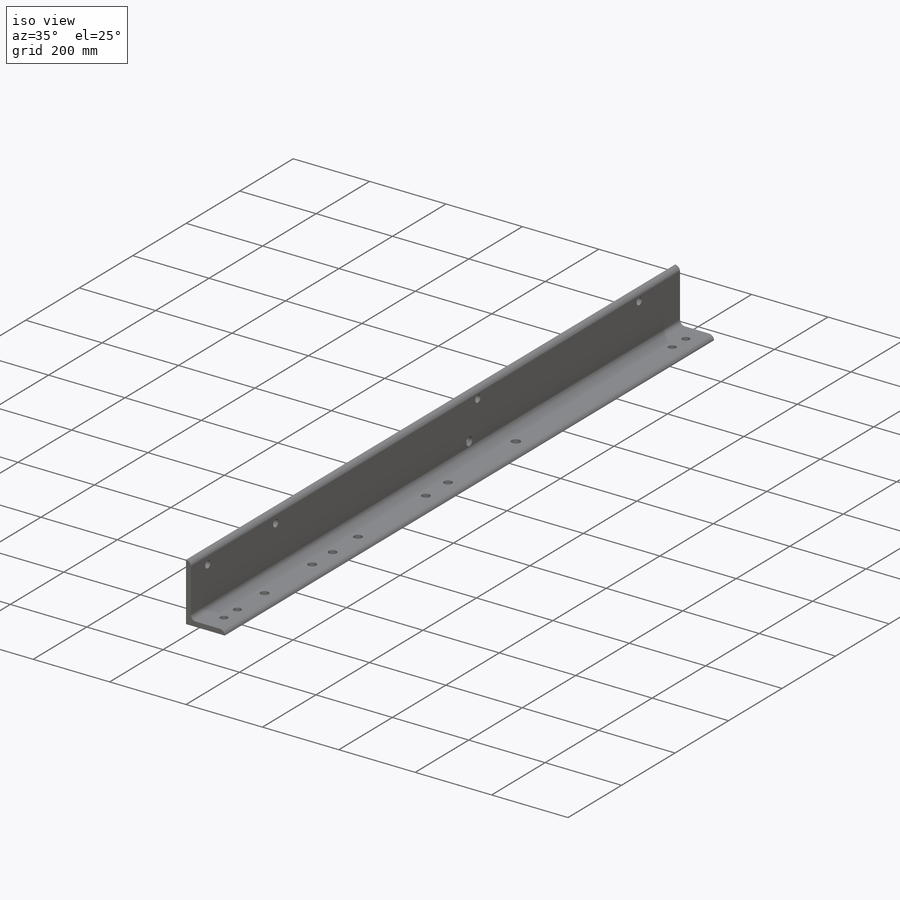
[diagram: iso view]
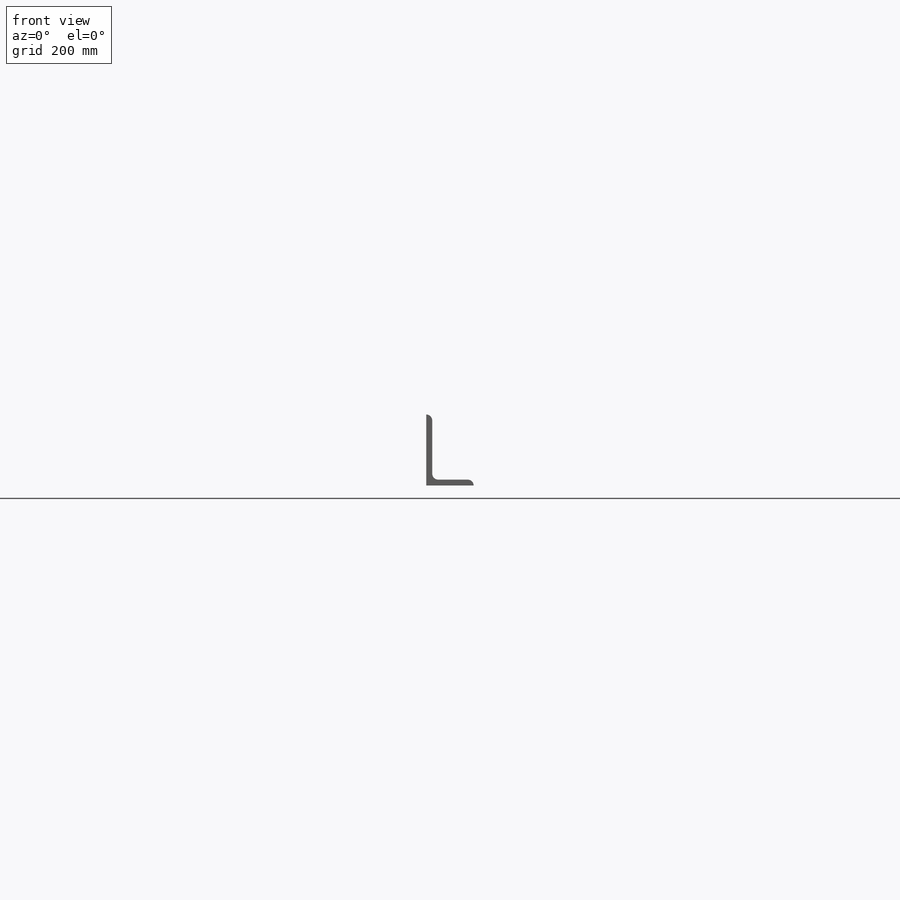
[diagram: front view]
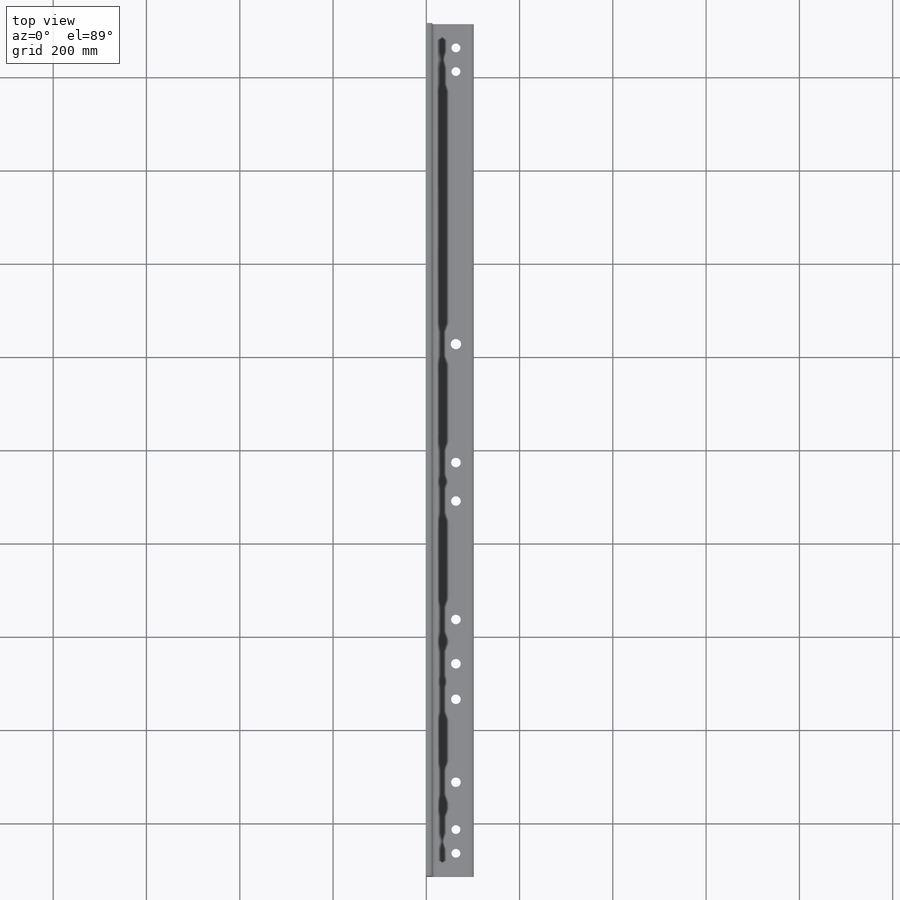
[diagram: top view]
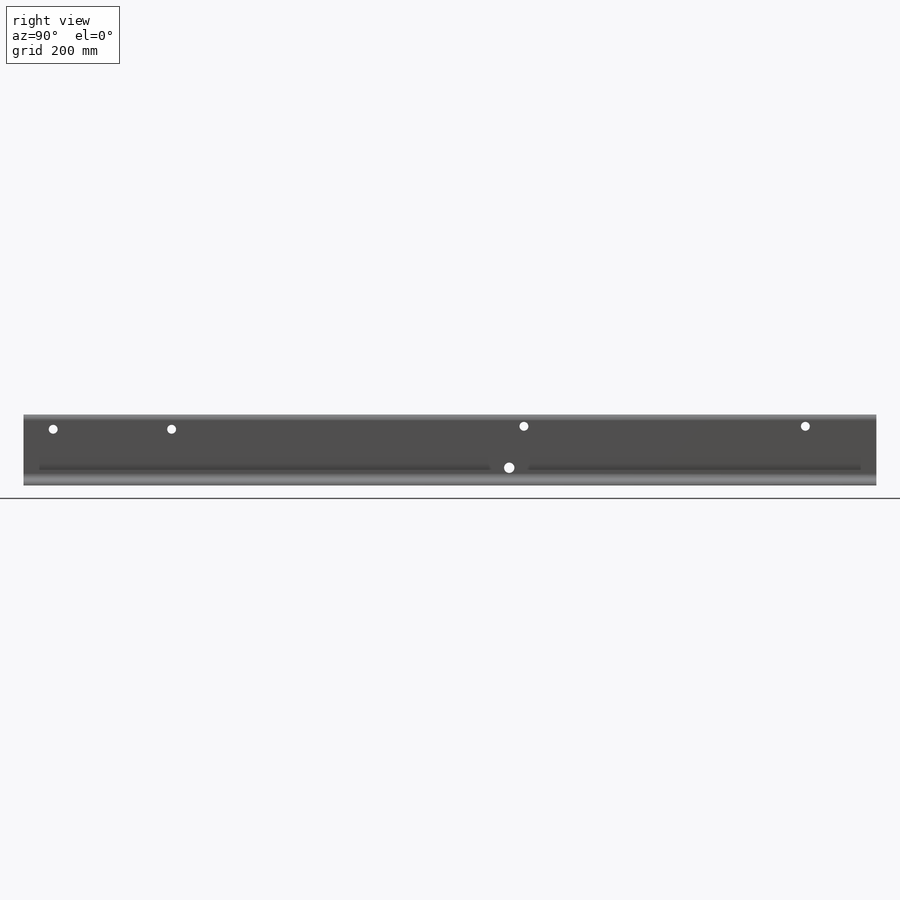
[diagram: right view]
SOLIDWORKS PART (.sldprt)
format: sldprt  version: not decoded by parser v0  size: 281,088 bytes
history: native  units: mm
features: sketch x4, cut_extrude x3, material x1, extrude x1 (+11 scaffold rows collapsed)
feature tree (20):
  scaffold x11  (default folders/planes/origin — collapsed)
  material  "Material <not specified>"
  sketch  "Sketch1"  dims[c1.D2=3.175mm c1.Radius_1=12.7mm c1.Radius_2=12.7mm c1.V_leg=50.8mm c1.H_leg=50.8mm c1.Thickness=12.7mm c1.D1=12.7mm c1.D3=46.0375mm c2.V_leg=152.4mm c2.H_leg=101.6mm c2.Flat_wid=~0.00508mm c2.D3=6.35mm c2.D2=~0.00508mm]
  extrude  "Boss-Extrude1"  Depth=1828.8mm
  sketch  "Sketch3"  dims[c1.D3=25.4mm c1.D4=25.4mm c1.D5=~35.276702mm c1.D8=~35.078463mm c1.D9=20.6375mm c1.D10=~17.119184mm c1.D11=~17.119184mm c1.D7=20.6375mm c1.D13=19.05mm c2.D7=20.6375mm c2.D8=20.6375mm c2.D11=22.225mm c2.D14=20.6375mm c2.D1=38.1mm c2.D2=50.8mm c2.D3=50.8mm c2.D4=279.4mm c2.D5=215.9mm c3.D4=203.2mm c3.D5=254.0mm c3.D6=939.8mm c3.D7=152.4mm c3.D8=673.1mm c3.D10=476.25mm c3.D11=352.425mm c4.D7=76.2mm c4.D8=254.0mm c4.D6=69.85mm c4.D12=50.8mm c4.D13=50.8mm c5.D7=76.2mm c5.D6=552.196mm c5.D8=254.0mm c5.D10=888.746mm c5.D14=254.0mm]
  cut_extrude  "Cut-Extrude2"  [1 undecoded]
  sketch  "Sketch4"  dims[c1.D1=~30.716564mm c1.D4=25.4mm c2.D1=31.75mm c2.D2=31.75mm c2.D3=63.5mm c2.D4=254.0mm c2.D5=25.4mm c2.D6=755.904mm c2.D7=25.4mm c2.D8=152.4mm]
  cut_extrude  "Cut-Extrude3"  [1 undecoded]
  sketch  "Sketch5"  dims[c1.D1=22.225mm c1.D2=22.225mm c2.D1=38.1mm c2.D2=787.4mm]
  cut_extrude  "Cut-Extrude4"  [1 undecoded]
decode coverage: 5 of 8 modeling features carry decoded parameters
note: ~ marks probable driven/reference dimensions
note: 3 parameter values undecoded
summary: no parameter record found for 3 features
note: suppression state not decoded; provenance and decode notes live in map.json
